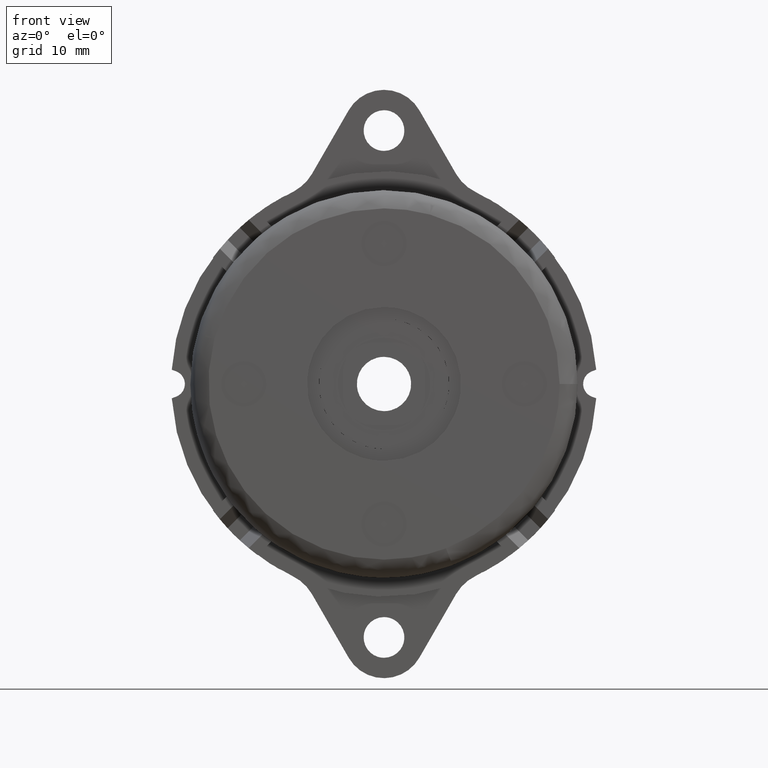
[diagram: clean part render]
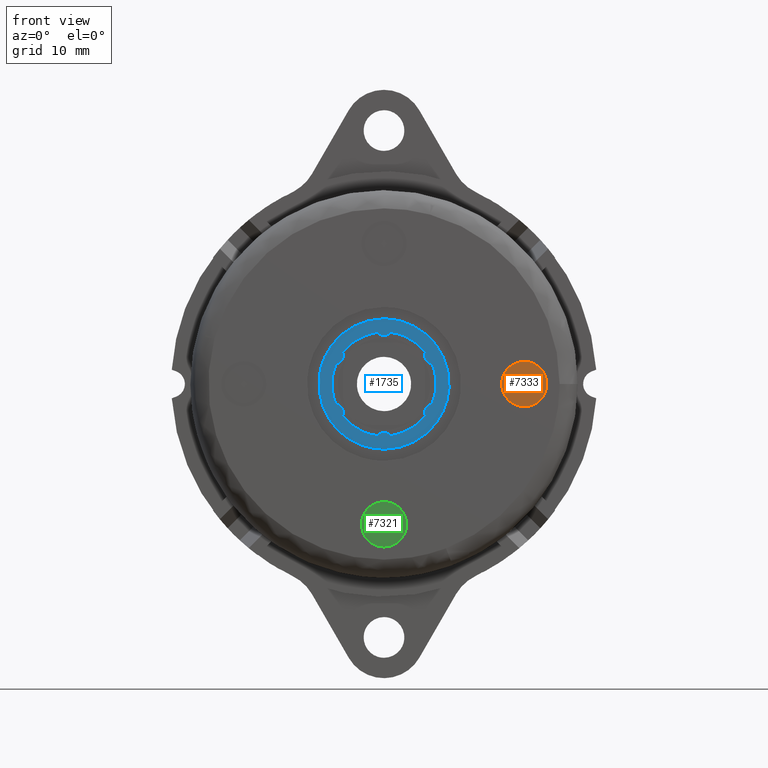
[diagram: same view with three faces highlighted in distinct colors, each labeled with its STEP entity id]
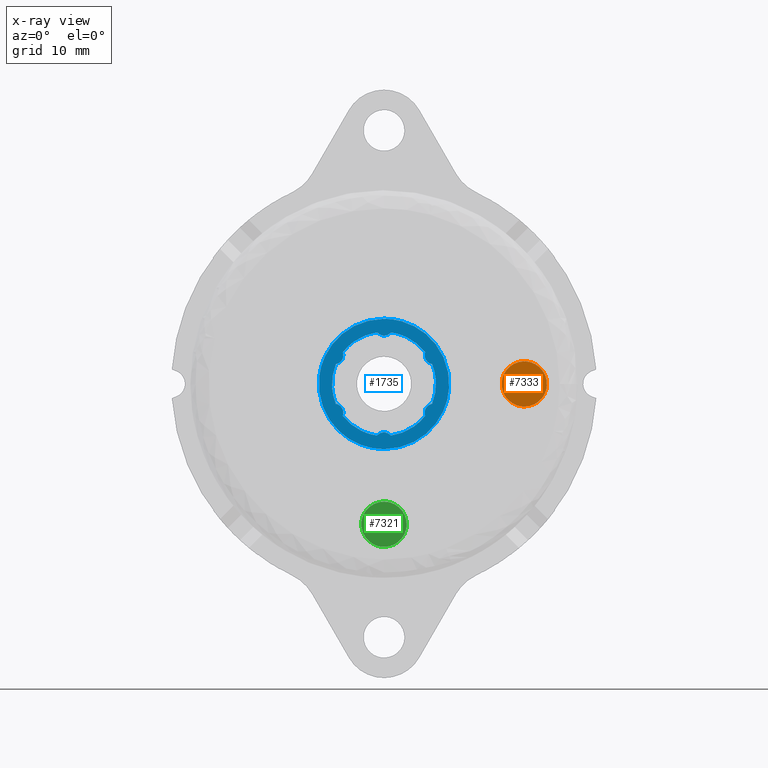
[diagram: x-ray of the same camera — body ghosted, the three highlighted faces saturated]
A machine part, front view with three faces highlighted in distinct colors.
The next image is the same camera in x-ray (body ghosted, the three faces saturated) — at least one of them is partly hidden behind the body in this view.
Their STEP definitions:

[orange] entity #7333 — the highlighted face is a freeform B-spline surface patch.
#2197=CARTESIAN_POINT('',(13.017475748016700,-10.200005000003401,0.295081917950086));
#2198=VERTEX_POINT('',#2197);
#2199=CARTESIAN_POINT('',(15.500000000000000,-10.200004999999960,-2.500000000000000));
#2200=VERTEX_POINT('',#2199);
#2201=CARTESIAN_POINT('',(13.017475748016700,-10.200005000003404,0.295081917950086));
#2202=CARTESIAN_POINT('',(13.000000000000004,-10.200004999999960,0.148058445391806));
#2203=CARTESIAN_POINT('',(13.0,-10.200004999999960,0.0));
#2204=CARTESIAN_POINT('',(13.000000000000002,-10.200004999999960,-2.500000000000000));
#2205=CARTESIAN_POINT('',(15.500000000000000,-10.200004999999960,-2.500000000000000));
#2213=(BOUNDED_CURVE()B_SPLINE_CURVE(2,(#2201,#2202,#2203,#2204,#2205),.UNSPECIFIED.,.F.,.U.)B_SPLINE_CURVE_WITH_KNOTS((3,2,3),(0.229562723269901,0.250000000000000,0.500000000000000),.UNSPECIFIED.)CURVE()GEOMETRIC_REPRESENTATION_ITEM()RATIONAL_B_SPLINE_CURVE((0.956027243717034,0.976056240938960,1.0,0.707106781186548,1.0))REPRESENTATION_ITEM(''));
#2214=EDGE_CURVE('',#2198,#2200,#2213,.T.);
#2255=CARTESIAN_POINT('',(17.995336996050749,-10.200004999999960,-0.152621348901246));
#2256=VERTEX_POINT('',#2255);
#2262=CARTESIAN_POINT('',(15.500000000000000,-10.200004999999960,-2.500000000000000));
#2263=CARTESIAN_POINT('',(17.851765167143189,-10.200004999999960,-2.500000000000000));
#2264=CARTESIAN_POINT('',(17.995336996050749,-10.200004999999962,-0.152621348901246));
#2272=(BOUNDED_CURVE()B_SPLINE_CURVE(2,(#2262,#2263,#2264),.UNSPECIFIED.,.F.,.U.)B_SPLINE_CURVE_WITH_KNOTS((3,3),(0.500000000000000,0.739332962233103),.UNSPECIFIED.)CURVE()GEOMETRIC_REPRESENTATION_ITEM()RATIONAL_B_SPLINE_CURVE((1.0,0.719603993293552,0.976072041654202))REPRESENTATION_ITEM(''));
#2273=EDGE_CURVE('',#2200,#2256,#2272,.T.);
#2300=CARTESIAN_POINT('',(15.500000000000000,-10.200004999999960,2.500000000000000));
#2301=VERTEX_POINT('',#2300);
#2302=CARTESIAN_POINT('',(15.500000000000000,-10.200004999999960,2.500000000000000));
#2303=CARTESIAN_POINT('',(13.279560380643145,-10.200004999999960,2.500000000000000));
#2304=CARTESIAN_POINT('',(13.017475748016700,-10.200005000003404,0.295081917950086));
#2312=(BOUNDED_CURVE()B_SPLINE_CURVE(2,(#2302,#2303,#2304),.UNSPECIFIED.,.F.,.U.)B_SPLINE_CURVE_WITH_KNOTS((3,3),(0.0,0.229562723269901),.UNSPECIFIED.)CURVE()GEOMETRIC_REPRESENTATION_ITEM()RATIONAL_B_SPLINE_CURVE((1.0,0.731050540247588,0.956027243717034))REPRESENTATION_ITEM(''));
#2313=EDGE_CURVE('',#2301,#2198,#2312,.T.);
#2315=CARTESIAN_POINT('',(17.995336996050749,-10.200004999999962,-0.152621348901246));
#2316=CARTESIAN_POINT('',(17.999999999999996,-10.200004999999955,-0.076381908310756));
#2317=CARTESIAN_POINT('',(18.0,-10.200004999999960,0.0));
#2318=CARTESIAN_POINT('',(18.000000000000007,-10.200004999999960,2.500000000000000));
#2319=CARTESIAN_POINT('',(15.500000000000000,-10.200004999999960,2.500000000000000));
#2327=(BOUNDED_CURVE()B_SPLINE_CURVE(2,(#2315,#2316,#2317,#2318,#2319),.UNSPECIFIED.,.F.,.U.)B_SPLINE_CURVE_WITH_KNOTS((3,2,3),(0.739332962233103,0.750000000000000,1.0),.UNSPECIFIED.)CURVE()GEOMETRIC_REPRESENTATION_ITEM()RATIONAL_B_SPLINE_CURVE((0.976072041654202,0.987502787892996,1.0,0.707106781186548,1.0))REPRESENTATION_ITEM(''));
#2328=EDGE_CURVE('',#2256,#2301,#2327,.T.);
#7322=CARTESIAN_POINT('',(12.750295819235070,-10.200005000000001,2.749749990309030));
#7323=CARTESIAN_POINT('',(18.249689875650180,-10.200005000000001,2.749749990309030));
#7324=CARTESIAN_POINT('',(12.750295819235070,-10.200005000000001,-2.749750124419481));
#7325=CARTESIAN_POINT('',(18.249689875650180,-10.200005000000001,-2.749750124419481));
#7326=B_SPLINE_SURFACE_WITH_KNOTS('',1,1,((#7322,#7324),(#7323,#7325)),.UNSPECIFIED.,.F.,.F.,.U.,(2,2),(2,2),(0.0,5.499394056415106),(0.0,5.499500114728511),.UNSPECIFIED.);
#7327=ORIENTED_EDGE('',*,*,#2313,.T.);
#7328=ORIENTED_EDGE('',*,*,#2214,.T.);
#7329=ORIENTED_EDGE('',*,*,#2273,.T.);
#7330=ORIENTED_EDGE('',*,*,#2328,.T.);
#7331=EDGE_LOOP('',(#7327,#7328,#7329,#7330));
#7332=FACE_OUTER_BOUND('',#7331,.T.);
#7333=ADVANCED_FACE('',(#7332),#7326,.F.);

[blue] entity #1735 — the highlighted face is a freeform B-spline surface patch.
#840=CARTESIAN_POINT('',(7.186570548634127,-9.700005000000001,-0.439549484705154));
#841=VERTEX_POINT('',#840);
#847=CARTESIAN_POINT('',(0.0,-9.700004999999999,-7.200000000000000));
#848=VERTEX_POINT('',#847);
#849=CARTESIAN_POINT('',(0.0,-9.700004999999999,-7.200000000000000));
#850=CARTESIAN_POINT('',(6.773083681618700,-9.700004999999999,-7.200000000000000));
#851=CARTESIAN_POINT('',(7.186570548634127,-9.700005000000001,-0.439549484705154));
#859=(BOUNDED_CURVE()B_SPLINE_CURVE(2,(#849,#850,#851),.UNSPECIFIED.,.F.,.U.)B_SPLINE_CURVE_WITH_KNOTS((3,3),(0.500000000000000,0.739332962239367),.UNSPECIFIED.)CURVE()GEOMETRIC_REPRESENTATION_ITEM()RATIONAL_B_SPLINE_CURVE((1.0,0.719603993286213,0.976072041667627))REPRESENTATION_ITEM(''));
#860=EDGE_CURVE('',#848,#841,#859,.T.);
#862=CARTESIAN_POINT('',(-7.149669536133629,-9.700004999999999,0.849838528203115));
#863=VERTEX_POINT('',#862);
#864=CARTESIAN_POINT('',(-7.149669536133629,-9.700004999999999,0.849838528203115));
#865=CARTESIAN_POINT('',(-7.200000000000001,-9.700004999999999,0.426409638748586));
#866=CARTESIAN_POINT('',(-7.200000000000000,-9.700004999999999,0.0));
#867=CARTESIAN_POINT('',(-7.200000000000000,-9.700005000000001,-7.200000000000000));
#868=CARTESIAN_POINT('',(0.0,-9.700004999999999,-7.200000000000000));
#876=(BOUNDED_CURVE()B_SPLINE_CURVE(2,(#864,#865,#866,#867,#868),.UNSPECIFIED.,.F.,.U.)B_SPLINE_CURVE_WITH_KNOTS((3,2,3),(0.229562661704783,0.250000000000000,0.500000000000000),.UNSPECIFIED.)CURVE()GEOMETRIC_REPRESENTATION_ITEM()RATIONAL_B_SPLINE_CURVE((0.956027123046631,0.976056168810938,1.0,0.707106781186547,1.0))REPRESENTATION_ITEM(''));
#877=EDGE_CURVE('',#863,#848,#876,.T.);
#921=CARTESIAN_POINT('',(0.0,-9.700004999999999,7.200000000000000));
#922=VERTEX_POINT('',#921);
#923=CARTESIAN_POINT('',(0.0,-9.700004999999999,7.200000000000000));
#924=CARTESIAN_POINT('',(-6.394863757805282,-9.700004999999999,7.200000000000001));
#925=CARTESIAN_POINT('',(-7.149669536133629,-9.700004999999999,0.849838528203115));
#933=(BOUNDED_CURVE()B_SPLINE_CURVE(2,(#923,#924,#925),.UNSPECIFIED.,.F.,.U.)B_SPLINE_CURVE_WITH_KNOTS((3,3),(0.0,0.229562661704783),.UNSPECIFIED.)CURVE()GEOMETRIC_REPRESENTATION_ITEM()RATIONAL_B_SPLINE_CURVE((1.0,0.731050612375610,0.956027123046631))REPRESENTATION_ITEM(''));
#934=EDGE_CURVE('',#922,#863,#933,.T.);
#936=CARTESIAN_POINT('',(7.186570548634127,-9.700005000000001,-0.439549484705154));
#937=CARTESIAN_POINT('',(7.199999999999999,-9.700004999999999,-0.219979895804176));
#938=CARTESIAN_POINT('',(7.200000000000000,-9.700004999999999,0.0));
#939=CARTESIAN_POINT('',(7.200000000000000,-9.700005000000001,7.200000000000000));
#940=CARTESIAN_POINT('',(0.0,-9.700004999999999,7.200000000000000));
#948=(BOUNDED_CURVE()B_SPLINE_CURVE(2,(#936,#937,#938,#939,#940),.UNSPECIFIED.,.F.,.U.)B_SPLINE_CURVE_WITH_KNOTS((3,2,3),(0.739332962239366,0.750000000000000,1.0),.UNSPECIFIED.)CURVE()GEOMETRIC_REPRESENTATION_ITEM()RATIONAL_B_SPLINE_CURVE((0.976072041667625,0.987502787900334,1.0,0.707106781186547,1.0))REPRESENTATION_ITEM(''));
#949=EDGE_CURVE('',#841,#922,#948,.T.);
#1020=CARTESIAN_POINT('',(-0.759599007290664,-9.700004999999999,5.699608311766540));
#1021=VERTEX_POINT('',#1020);
#1022=CARTESIAN_POINT('',(0.759597383731499,-9.700004999999999,5.699606415600220));
#1023=VERTEX_POINT('',#1022);
#1024=CARTESIAN_POINT('',(-0.759599007290663,-9.700004999999999,5.699608311766541));
#1025=CARTESIAN_POINT('',(-0.460254268416689,-9.700004999999997,5.350000574459835));
#1026=CARTESIAN_POINT('',(-0.000001248137720,-9.700004999999999,5.350000000000679));
#1027=CARTESIAN_POINT('',(0.460251772141248,-9.700004999999997,5.349999425541524));
#1028=CARTESIAN_POINT('',(0.759597383731498,-9.700004999999999,5.699606415600220));
#1036=(BOUNDED_CURVE()B_SPLINE_CURVE(2,(#1024,#1025,#1026,#1027,#1028),.UNSPECIFIED.,.F.,.U.)B_SPLINE_CURVE_WITH_KNOTS((3,2,3),(0.0,0.500000000000000,1.0),.UNSPECIFIED.)CURVE()GEOMETRIC_REPRESENTATION_ITEM()RATIONAL_B_SPLINE_CURVE((1.0,0.908403169390394,1.0,0.908403169390394,1.0))REPRESENTATION_ITEM(''));
#1037=EDGE_CURVE('',#1021,#1023,#1036,.T.);
#1085=CARTESIAN_POINT('',(4.556199191376080,-9.700004999999999,3.507639546944090));
#1086=VERTEX_POINT('',#1085);
#1087=CARTESIAN_POINT('',(4.556199191376080,-9.700004999999999,3.507639546944090));
#1088=CARTESIAN_POINT('',(3.109826243421766,-9.700004999999999,5.386386454696181));
#1089=CARTESIAN_POINT('',(0.759597383731499,-9.700004999999999,5.699606415600220));
#1097=(BOUNDED_CURVE()B_SPLINE_CURVE(2,(#1087,#1088,#1089),.UNSPECIFIED.,.F.,.U.)CURVE()GEOMETRIC_REPRESENTATION_ITEM()QUASI_UNIFORM_CURVE()RATIONAL_B_SPLINE_CURVE((1.0,0.924487667436830,1.0))REPRESENTATION_ITEM(''));
#1098=EDGE_CURVE('',#1086,#1023,#1097,.T.);
#1138=CARTESIAN_POINT('',(5.315802175201110,-9.700004999999999,2.191973365286890));
#1139=VERTEX_POINT('',#1138);
#1140=CARTESIAN_POINT('',(4.556199191376080,-9.700004999999999,3.507639546944090));
#1141=CARTESIAN_POINT('',(4.403102544145672,-9.700004999999999,3.073593303610068));
#1142=CARTESIAN_POINT('',(4.633230757974982,-9.700004999999999,2.675000993116798));
#1143=CARTESIAN_POINT('',(4.863358971804292,-9.700004999999999,2.276408682623528));
#1144=CARTESIAN_POINT('',(5.315802175201110,-9.700004999999999,2.191973365286890));
#1152=(BOUNDED_CURVE()B_SPLINE_CURVE(2,(#1140,#1141,#1142,#1143,#1144),.UNSPECIFIED.,.F.,.U.)B_SPLINE_CURVE_WITH_KNOTS((3,2,3),(0.0,0.500000000000000,1.0),.UNSPECIFIED.)CURVE()GEOMETRIC_REPRESENTATION_ITEM()RATIONAL_B_SPLINE_CURVE((1.0,0.908402669986084,1.0,0.908402669986084,1.0))REPRESENTATION_ITEM(''));
#1153=EDGE_CURVE('',#1086,#1139,#1152,.T.);
#1195=CARTESIAN_POINT('',(5.315797921371410,-9.700004999999999,-2.191972278976301));
#1196=VERTEX_POINT('',#1195);
#1197=CARTESIAN_POINT('',(5.315797921371410,-9.700004999999999,-2.191972278976301));
#1198=CARTESIAN_POINT('',(6.219661485022066,-9.700004999999999,0.000000494634894));
#1199=CARTESIAN_POINT('',(5.315802175201110,-9.700004999999999,2.191973365286890));
#1207=(BOUNDED_CURVE()B_SPLINE_CURVE(2,(#1197,#1198,#1199),.UNSPECIFIED.,.F.,.U.)CURVE()GEOMETRIC_REPRESENTATION_ITEM()QUASI_UNIFORM_CURVE()RATIONAL_B_SPLINE_CURVE((1.0,0.924487314353610,1.0))REPRESENTATION_ITEM(''));
#1208=EDGE_CURVE('',#1196,#1139,#1207,.T.);
#1248=CARTESIAN_POINT('',(4.556201176092801,-9.700004999999999,-3.507638927109035));
#1249=VERTEX_POINT('',#1248);
#1250=CARTESIAN_POINT('',(5.315797921371408,-9.700004999999999,-2.191972278976293));
#1251=CARTESIAN_POINT('',(4.863355053184591,-9.700004999999999,-2.276409213020691));
#1252=CARTESIAN_POINT('',(4.633228616651550,-9.700004999999999,-2.675001696658475));
#1253=CARTESIAN_POINT('',(4.403102180118509,-9.700004999999999,-3.073594180296259));
#1254=CARTESIAN_POINT('',(4.556201176092801,-9.700004999999999,-3.507638927109035));
#1262=(BOUNDED_CURVE()B_SPLINE_CURVE(2,(#1250,#1251,#1252,#1253,#1254),.UNSPECIFIED.,.F.,.U.)B_SPLINE_CURVE_WITH_KNOTS((3,2,3),(0.0,0.500000000000000,1.0),.UNSPECIFIED.)CURVE()GEOMETRIC_REPRESENTATION_ITEM()RATIONAL_B_SPLINE_CURVE((1.0,0.908402681346200,1.0,0.908402681346200,1.0))REPRESENTATION_ITEM(''));
#1263=EDGE_CURVE('',#1196,#1249,#1262,.T.);
#1305=CARTESIAN_POINT('',(0.759599007290664,-9.700004999999999,-5.699608311766650));
#1306=VERTEX_POINT('',#1305);
#1307=CARTESIAN_POINT('',(0.759599007290664,-9.700004999999999,-5.699608311766650));
#1308=CARTESIAN_POINT('',(3.109828326834121,-9.700004999999999,-5.386387095458611));
#1309=CARTESIAN_POINT('',(4.556201176092801,-9.700004999999999,-3.507638927109035));
#1317=(BOUNDED_CURVE()B_SPLINE_CURVE(2,(#1307,#1308,#1309),.UNSPECIFIED.,.F.,.U.)CURVE()GEOMETRIC_REPRESENTATION_ITEM()QUASI_UNIFORM_CURVE()RATIONAL_B_SPLINE_CURVE((1.0,0.924487656065657,1.0))REPRESENTATION_ITEM(''));
#1318=EDGE_CURVE('',#1306,#1249,#1317,.T.);
#1358=CARTESIAN_POINT('',(-0.759597861519837,-9.700004999999999,-5.699606222255580));
#1359=VERTEX_POINT('',#1358);
#1360=CARTESIAN_POINT('',(0.759599007290668,-9.700004999999999,-5.699608311766647));
#1361=CARTESIAN_POINT('',(0.460254236124305,-9.700004999999997,-5.350000536745329));
#1362=CARTESIAN_POINT('',(0.000001166194609,-9.700004999999999,-5.350000000000680));
#1363=CARTESIAN_POINT('',(-0.460251903735088,-9.700004999999997,-5.349999463256031));
#1364=CARTESIAN_POINT('',(-0.759597861519837,-9.700004999999999,-5.699606222255580));
#1372=(BOUNDED_CURVE()B_SPLINE_CURVE(2,(#1360,#1361,#1362,#1363,#1364),.UNSPECIFIED.,.F.,.U.)B_SPLINE_CURVE_WITH_KNOTS((3,2,3),(0.0,0.500000000000000,1.0),.UNSPECIFIED.)CURVE()GEOMETRIC_REPRESENTATION_ITEM()RATIONAL_B_SPLINE_CURVE((1.0,0.908403152260377,1.0,0.908403152260377,1.0))REPRESENTATION_ITEM(''));
#1373=EDGE_CURVE('',#1306,#1359,#1372,.T.);
#1415=CARTESIAN_POINT('',(-4.556209191376100,-9.700004999999999,-3.507634546944105));
#1416=VERTEX_POINT('',#1415);
#1417=CARTESIAN_POINT('',(-4.556209191376100,-9.700004999999999,-3.507634546944105));
#1418=CARTESIAN_POINT('',(-3.109834178918766,-9.700004999999999,-5.386386868518986));
#1419=CARTESIAN_POINT('',(-0.759597861519837,-9.700004999999999,-5.699606222255580));
#1427=(BOUNDED_CURVE()B_SPLINE_CURVE(2,(#1417,#1418,#1419),.UNSPECIFIED.,.F.,.U.)CURVE()GEOMETRIC_REPRESENTATION_ITEM()QUASI_UNIFORM_CURVE()RATIONAL_B_SPLINE_CURVE((1.0,0.924487350433640,1.0))REPRESENTATION_ITEM(''));
#1428=EDGE_CURVE('',#1416,#1359,#1427,.T.);
#1468=CARTESIAN_POINT('',(-5.315802328229681,-9.700004999999999,-2.191972994173950));
#1469=VERTEX_POINT('',#1468);
#1470=CARTESIAN_POINT('',(-4.556209191376095,-9.700004999999999,-3.507634546944107));
#1471=CARTESIAN_POINT('',(-4.403113716062736,-9.700004999999999,-3.073591905869426));
#1472=CARTESIAN_POINT('',(-4.633238407029259,-9.700004999999999,-2.675002059736751));
#1473=CARTESIAN_POINT('',(-4.863363097995783,-9.700004999999999,-2.276412213604076));
#1474=CARTESIAN_POINT('',(-5.315802328229681,-9.700004999999999,-2.191972994173950));
#1482=(BOUNDED_CURVE()B_SPLINE_CURVE(2,(#1470,#1471,#1472,#1473,#1474),.UNSPECIFIED.,.F.,.U.)B_SPLINE_CURVE_WITH_KNOTS((3,2,3),(0.0,0.500000000000000,1.0),.UNSPECIFIED.)CURVE()GEOMETRIC_REPRESENTATION_ITEM()RATIONAL_B_SPLINE_CURVE((1.0,0.908403770520404,1.0,0.908403770520404,1.0))REPRESENTATION_ITEM(''));
#1483=EDGE_CURVE('',#1416,#1469,#1482,.T.);
#1525=CARTESIAN_POINT('',(-5.315807921371430,-9.700004999999999,2.191977278976290));
#1526=VERTEX_POINT('',#1525);
#1527=CARTESIAN_POINT('',(-5.315807921371430,-9.700004999999999,2.191977278976290));
#1528=CARTESIAN_POINT('',(-6.219666730658712,-9.700005000000001,0.000002286159715));
#1529=CARTESIAN_POINT('',(-5.315802328229681,-9.700004999999999,-2.191972994173950));
#1537=(BOUNDED_CURVE()B_SPLINE_CURVE(2,(#1527,#1528,#1529),.UNSPECIFIED.,.F.,.U.)CURVE()GEOMETRIC_REPRESENTATION_ITEM()QUASI_UNIFORM_CURVE()RATIONAL_B_SPLINE_CURVE((1.0,0.924487300799630,1.0))REPRESENTATION_ITEM(''));
#1538=EDGE_CURVE('',#1526,#1469,#1537,.T.);
#1578=CARTESIAN_POINT('',(-4.556209191376100,-9.700004999999999,3.507639546944090));
#1579=VERTEX_POINT('',#1578);
#1580=CARTESIAN_POINT('',(-5.315807921371430,-9.700004999999999,2.191977278976289));
#1581=CARTESIAN_POINT('',(-4.863366480001693,-9.700004999999997,2.276413946741622));
#1582=CARTESIAN_POINT('',(-4.633239814381806,-9.700004999999999,2.675004622125169));
#1583=CARTESIAN_POINT('',(-4.403113148761920,-9.700004999999997,3.073595297508716));
#1584=CARTESIAN_POINT('',(-4.556209191376089,-9.700004999999999,3.507639546944093));
#1592=(BOUNDED_CURVE()B_SPLINE_CURVE(2,(#1580,#1581,#1582,#1583,#1584),.UNSPECIFIED.,.F.,.U.)B_SPLINE_CURVE_WITH_KNOTS((3,2,3),(0.0,0.500000000000000,1.0),.UNSPECIFIED.)CURVE()GEOMETRIC_REPRESENTATION_ITEM()RATIONAL_B_SPLINE_CURVE((1.0,0.908403182112868,1.0,0.908403182112868,1.0))REPRESENTATION_ITEM(''));
#1593=EDGE_CURVE('',#1526,#1579,#1592,.T.);
#1635=CARTESIAN_POINT('',(-0.759599007290664,-9.700004999999999,5.699608311766540));
#1636=CARTESIAN_POINT('',(-3.109833543485178,-9.700004999999999,5.386388808051872));
#1637=CARTESIAN_POINT('',(-4.556209191376100,-9.700004999999999,3.507639546944090));
#1645=(BOUNDED_CURVE()B_SPLINE_CURVE(2,(#1635,#1636,#1637),.UNSPECIFIED.,.F.,.U.)CURVE()GEOMETRIC_REPRESENTATION_ITEM()QUASI_UNIFORM_CURVE()RATIONAL_B_SPLINE_CURVE((1.0,0.924487510264780,1.0))REPRESENTATION_ITEM(''));
#1646=EDGE_CURVE('',#1021,#1579,#1645,.T.);
#1710=CARTESIAN_POINT('',(-7.919149559832550,-9.700004999999999,7.919279785466195));
#1711=CARTESIAN_POINT('',(7.919104756213163,-9.700004999999999,7.919279785466195));
#1712=CARTESIAN_POINT('',(-7.919149559832550,-9.700004999999999,-7.919279270482064));
#1713=CARTESIAN_POINT('',(7.919104756213163,-9.700004999999999,-7.919279270482064));
#1714=B_SPLINE_SURFACE_WITH_KNOTS('',1,1,((#1710,#1712),(#1711,#1713)),.UNSPECIFIED.,.F.,.F.,.U.,(2,2),(2,2),(0.0,15.838254316045710),(0.0,15.838559055948259),.UNSPECIFIED.);
#1715=ORIENTED_EDGE('',*,*,#934,.T.);
#1716=ORIENTED_EDGE('',*,*,#877,.T.);
#1717=ORIENTED_EDGE('',*,*,#860,.T.);
#1718=ORIENTED_EDGE('',*,*,#949,.T.);
#1719=EDGE_LOOP('',(#1715,#1716,#1717,#1718));
#1720=FACE_OUTER_BOUND('',#1719,.T.);
#1721=ORIENTED_EDGE('',*,*,#1646,.F.);
#1722=ORIENTED_EDGE('',*,*,#1037,.T.);
#1723=ORIENTED_EDGE('',*,*,#1098,.F.);
#1724=ORIENTED_EDGE('',*,*,#1153,.T.);
#1725=ORIENTED_EDGE('',*,*,#1208,.F.);
#1726=ORIENTED_EDGE('',*,*,#1263,.T.);
#1727=ORIENTED_EDGE('',*,*,#1318,.F.);
#1728=ORIENTED_EDGE('',*,*,#1373,.T.);
#1729=ORIENTED_EDGE('',*,*,#1428,.F.);
#1730=ORIENTED_EDGE('',*,*,#1483,.T.);
#1731=ORIENTED_EDGE('',*,*,#1538,.F.);
#1732=ORIENTED_EDGE('',*,*,#1593,.T.);
#1733=EDGE_LOOP('',(#1721,#1722,#1723,#1724,#1725,#1726,#1727,#1728,#1729,#1730,#1731,#1732));
#1734=FACE_BOUND('',#1733,.T.);
#1735=ADVANCED_FACE('',(#1720,#1734),#1714,.F.);

[green] entity #7321 — the highlighted face is a freeform B-spline surface patch.
#2007=CARTESIAN_POINT('',(-2.482524251983301,-10.200005000003401,-15.204918082049920));
#2008=VERTEX_POINT('',#2007);
#2009=CARTESIAN_POINT('',(0.0,-10.200004999999960,-18.0));
#2010=VERTEX_POINT('',#2009);
#2011=CARTESIAN_POINT('',(-2.482524251983300,-10.200005000003404,-15.204918082049918));
#2012=CARTESIAN_POINT('',(-2.500000000000000,-10.200004999999958,-15.351941554608196));
#2013=CARTESIAN_POINT('',(-2.500000000000000,-10.200004999999960,-15.500000000000000));
#2014=CARTESIAN_POINT('',(-2.500000000000000,-10.200004999999960,-18.000000000000007));
#2015=CARTESIAN_POINT('',(0.0,-10.200004999999960,-18.0));
#2023=(BOUNDED_CURVE()B_SPLINE_CURVE(2,(#2011,#2012,#2013,#2014,#2015),.UNSPECIFIED.,.F.,.U.)B_SPLINE_CURVE_WITH_KNOTS((3,2,3),(0.229562723269901,0.250000000000000,0.500000000000000),.UNSPECIFIED.)CURVE()GEOMETRIC_REPRESENTATION_ITEM()RATIONAL_B_SPLINE_CURVE((0.956027243717034,0.976056240938960,1.0,0.707106781186548,1.0))REPRESENTATION_ITEM(''));
#2024=EDGE_CURVE('',#2008,#2010,#2023,.T.);
#2065=CARTESIAN_POINT('',(2.495336996050746,-10.200004999999960,-15.652621348901249));
#2066=VERTEX_POINT('',#2065);
#2072=CARTESIAN_POINT('',(0.0,-10.200004999999960,-18.0));
#2073=CARTESIAN_POINT('',(2.351765167143181,-10.200004999999960,-18.000000000000007));
#2074=CARTESIAN_POINT('',(2.495336996050746,-10.200004999999960,-15.652621348901249));
#2082=(BOUNDED_CURVE()B_SPLINE_CURVE(2,(#2072,#2073,#2074),.UNSPECIFIED.,.F.,.U.)B_SPLINE_CURVE_WITH_KNOTS((3,3),(0.500000000000000,0.739332962233103),.UNSPECIFIED.)CURVE()GEOMETRIC_REPRESENTATION_ITEM()RATIONAL_B_SPLINE_CURVE((1.0,0.719603993293552,0.976072041654202))REPRESENTATION_ITEM(''));
#2083=EDGE_CURVE('',#2010,#2066,#2082,.T.);
#2110=CARTESIAN_POINT('',(0.0,-10.200004999999960,-13.0));
#2111=VERTEX_POINT('',#2110);
#2112=CARTESIAN_POINT('',(0.0,-10.200004999999960,-13.0));
#2113=CARTESIAN_POINT('',(-2.220439619356855,-10.200004999999960,-13.0));
#2114=CARTESIAN_POINT('',(-2.482524251983300,-10.200005000003404,-15.204918082049920));
#2122=(BOUNDED_CURVE()B_SPLINE_CURVE(2,(#2112,#2113,#2114),.UNSPECIFIED.,.F.,.U.)B_SPLINE_CURVE_WITH_KNOTS((3,3),(0.0,0.229562723269901),.UNSPECIFIED.)CURVE()GEOMETRIC_REPRESENTATION_ITEM()RATIONAL_B_SPLINE_CURVE((1.0,0.731050540247588,0.956027243717034))REPRESENTATION_ITEM(''));
#2123=EDGE_CURVE('',#2111,#2008,#2122,.T.);
#2125=CARTESIAN_POINT('',(2.495336996050747,-10.200004999999960,-15.652621348901246));
#2126=CARTESIAN_POINT('',(2.500000000000000,-10.200004999999964,-15.576381908310754));
#2127=CARTESIAN_POINT('',(2.500000000000000,-10.200004999999960,-15.500000000000000));
#2128=CARTESIAN_POINT('',(2.500000000000000,-10.200004999999960,-13.000000000000002));
#2129=CARTESIAN_POINT('',(0.0,-10.200004999999960,-13.0));
#2137=(BOUNDED_CURVE()B_SPLINE_CURVE(2,(#2125,#2126,#2127,#2128,#2129),.UNSPECIFIED.,.F.,.U.)B_SPLINE_CURVE_WITH_KNOTS((3,2,3),(0.739332962233103,0.750000000000000,1.0),.UNSPECIFIED.)CURVE()GEOMETRIC_REPRESENTATION_ITEM()RATIONAL_B_SPLINE_CURVE((0.976072041654202,0.987502787892996,1.0,0.707106781186548,1.0))REPRESENTATION_ITEM(''));
#2138=EDGE_CURVE('',#2066,#2111,#2137,.T.);
#7310=CARTESIAN_POINT('',(-2.749704661338550,-10.200005000000001,-12.750250009690969));
#7311=CARTESIAN_POINT('',(2.749689149229747,-10.200005000000001,-12.750250009690969));
#7312=CARTESIAN_POINT('',(-2.749704661338550,-10.200005000000001,-18.249750124419482));
#7313=CARTESIAN_POINT('',(2.749689149229747,-10.200005000000001,-18.249750124419482));
#7314=B_SPLINE_SURFACE_WITH_KNOTS('',1,1,((#7310,#7312),(#7311,#7313)),.UNSPECIFIED.,.F.,.F.,.U.,(2,2),(2,2),(0.0,5.499393810568297),(0.0,5.499500114728512),.UNSPECIFIED.);
#7315=ORIENTED_EDGE('',*,*,#2123,.T.);
#7316=ORIENTED_EDGE('',*,*,#2024,.T.);
#7317=ORIENTED_EDGE('',*,*,#2083,.T.);
#7318=ORIENTED_EDGE('',*,*,#2138,.T.);
#7319=EDGE_LOOP('',(#7315,#7316,#7317,#7318));
#7320=FACE_OUTER_BOUND('',#7319,.T.);
#7321=ADVANCED_FACE('',(#7320),#7314,.F.);